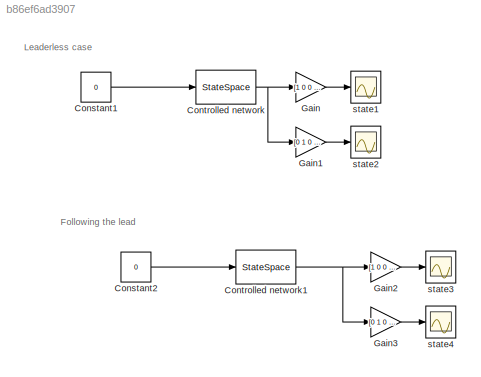
MODEL slx_b86ef6ad3907
KIND model
CONFIG AbsTol = auto
CONFIG FixedStep = auto
CONFIG MaxStep = auto
CONFIG MinStep = auto
CONFIG RelTol = 1e-3
CONFIG SampleTimeConstraint = Unconstrained
CONFIG Solver = ode23tb
CONFIG SolverMode = SingleTasking
CONFIG SolverName = ode23tb
CONFIG StartTime = 0.0
CONFIG StopTime = 10
BLOCK [Constant] Constant1
  Value = 0
BLOCK [Constant] Constant2
  Value = 0
BLOCK [StateSpace] Controlled network
  A = A_sync
  B = zeros(10,1)
  C = eye(10)
  D = zeros(10,1);
  Ports = [1, 1]
  X0 = [x01;x02;x03;x04;x05]
BLOCK [StateSpace] Controlled network1
  A = A_follow
  B = zeros(12,1)
  C = eye(12)
  D = zeros(12,1);
  Ports = [1, 1]
  X0 = [x0m;x01;x02;x03;x04;x05]
BLOCK [Gain] Gain
  Gain = [1 0 0 0 0 0 0 0 0 0;0 0 1 0 0 0 0 0 0 0;0 0 0 0 1 0 0 0 0 0;0 0 0 0 0 0 1 0 0 0;0 0 0 0 0 0 0 0 1 0;]
  Multiplication = Matrix(K*u)
  OutDataTypeStr = Inherit: Inherit via internal rule
  ParamDataTypeStr = Inherit: Inherit via internal rule
  SaturateOnIntegerOverflow = off
BLOCK [Gain] Gain1
  Gain = [0 1 0 0 0 0 0 0 0 0;0 0 0 1 0 0 0 0 0 0;0 0 0 0 0 1 0 0 0 0;0 0 0 0 0 0 0 1 0 0;0 0 0 0 0 0 0 0 0 1;]
  Multiplication = Matrix(K*u)
  OutDataTypeStr = Inherit: Inherit via internal rule
  ParamDataTypeStr = Inherit: Inherit via internal rule
  SaturateOnIntegerOverflow = off
BLOCK [Gain] Gain2
  Gain = [1 0 0 0 0 0 0 0 0 0 0 0;0 0 1 0 0 0 0 0 0 0 0 0;0 0 0 0 1 0 0 0 0 0 0 0;0 0 0 0 0 0 1 0 0 0 0 0;0 0 0 0 0 0 0 0 1 0 0 0;0 0 0 0 0 0 0 0 0 0 1 0]
  Multiplication = Matrix(K*u)
  OutDataTypeStr = Inherit: Inherit via internal rule
  ParamDataTypeStr = Inherit: Inherit via internal rule
  SaturateOnIntegerOverflow = off
BLOCK [Gain] Gain3
  Gain = [0 1 0 0 0 0 0 0 0 0 0 0;0 0 0 1 0 0 0 0 0 0 0 0;0 0 0 0 0 1 0 0 0 0 0 0;0 0 0 0 0 0 0 1 0 0 0 0;0 0 0 0 0 0 0 0 0 1 0 0; 0 0 0 0 0 0 0 0 0 0 0 1]
  Multiplication = Matrix(K*u)
  OutDataTypeStr = Inherit: Inherit via internal rule
  ParamDataTypeStr = Inherit: Inherit via internal rule
  SaturateOnIntegerOverflow = off
BLOCK [Scope] state1
  Floating = off
  NumInputPorts = 1
  Ports = [1]
  ScopeSpecificationString = Simulink.scopes.TimeScopeBlockCfg('CurrentConfiguration', extmgr.ConfigurationSet(extmgr.Configuration('Core','General UI',true),extmgr.Configuration('Core','Source UI',true),extmgr.Configuration('Sources','WiredSimulink',true,'DataLoggingVariableName','ScopeData1'),extmgr.Configuration('Visuals','Time Domain',true,'SerializedDisplays',{struct('MinYLimReal','-1.25347','MaxYLimReal','1.25323','YLab...<+1401ch>
BLOCK [Scope] state2
  Floating = off
  NumInputPorts = 1
  Ports = [1]
  ScopeSpecificationString = Simulink.scopes.TimeScopeBlockCfg('CurrentConfiguration', extmgr.ConfigurationSet(extmgr.Configuration('Core','General UI',true),extmgr.Configuration('Core','Source UI',true),extmgr.Configuration('Sources','WiredSimulink',true,'DataLoggingVariableName','ScopeData1'),extmgr.Configuration('Visuals','Time Domain',true,'SerializedDisplays',{struct('MinYLimReal','-1.25','MaxYLimReal','1.25','YLabelReal...<+1388ch>
BLOCK [Scope] state3
  Floating = off
  NumInputPorts = 1
  Ports = [1]
  ScopeSpecificationString = Simulink.scopes.TimeScopeBlockCfg('CurrentConfiguration', extmgr.ConfigurationSet(extmgr.Configuration('Core','General UI',true),extmgr.Configuration('Core','Source UI',true),extmgr.Configuration('Sources','WiredSimulink',true,'DataLoggingVariableName','ScopeData2'),extmgr.Configuration('Visuals','Time Domain',true,'SerializedDisplays',{struct('MinYLimReal','-1.79473','MaxYLimReal','1.82955','YLab...<+1416ch>
BLOCK [Scope] state4
  Floating = off
  NumInputPorts = 1
  Ports = [1]
  ScopeSpecificationString = Simulink.scopes.TimeScopeBlockCfg('CurrentConfiguration', extmgr.ConfigurationSet(extmgr.Configuration('Core','General UI',true),extmgr.Configuration('Core','Source UI',true),extmgr.Configuration('Sources','WiredSimulink',true,'DataLoggingVariableName','ScopeData3'),extmgr.Configuration('Visuals','Time Domain',true,'SerializedDisplays',{struct('MinYLimReal','-1.33879','MaxYLimReal','1.61164','YLab...<+1416ch>
ANNOTATION (root): Following the lead
ANNOTATION (root): Leaderless case
LINE Constant1:1 -> Controlled network:1
LINE Constant2:1 -> Controlled network1:1
NET Controlled network1:1 -> Gain2:1, Gain3:1
NET Controlled network:1 -> Gain1:1, Gain:1
LINE Gain1:1 -> state2:1
LINE Gain2:1 -> state3:1
LINE Gain3:1 -> state4:1
LINE Gain:1 -> state1:1
note: NET lines group one-source signal fan-out (src -> all destinations, sorted); 1:1 wires keep LINE
